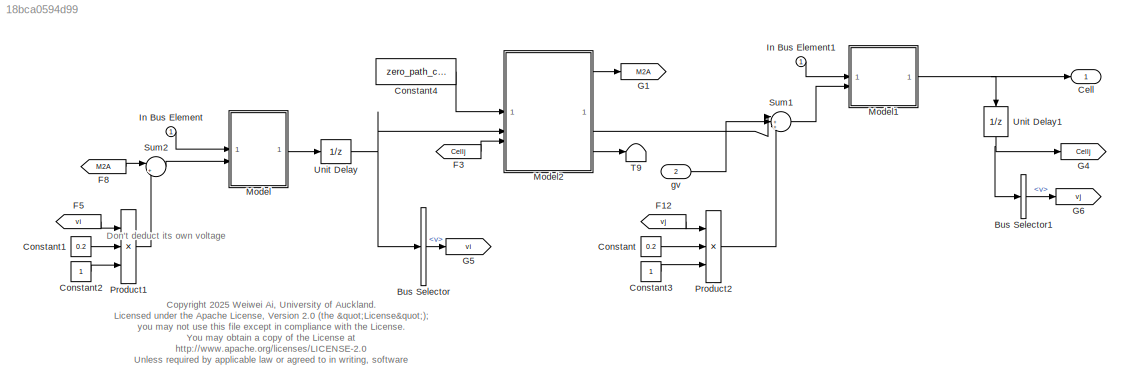
MODEL slx_18bca0594d99
KIND model
CONFIG AbsTol = auto
CONFIG EnableMultiTasking = off
CONFIG FixedStep = 0.5e-3
CONFIG MaxStep = auto
CONFIG MinStep = auto
CONFIG RelTol = 1e-3
CONFIG SampleTimeConstraint = Unconstrained
CONFIG SolverName = ode1
CONFIG StartTime = 0.0
CONFIG StopTime = 10.0
WORKSPACE source: mxarray member
WORKSPACE l: Simulink.Parameter (value not decoded)
WORKSPACE zero_path_cfg: object (value not decoded)
BLOCK [BusSelector] Bus Selector
  OutputSignals = v
BLOCK [BusSelector] Bus Selector1
  OutputSignals = v
BLOCK [Outport] Cell
  BusOutputAsStruct = on
  OutDataTypeStr = Bus: Cell
  SampleTime = 0
  SamplingMode = Sample based
  SignalType = real
BLOCK [Constant] Constant
  Value = 0.2
BLOCK [Constant] Constant1
  Value = 0.2
BLOCK [Constant] Constant2
BLOCK [Constant] Constant3
BLOCK [Constant] Constant4
  OutDataTypeStr = Bus: Config_Path
  SampleTime = -1
  Value = zero_path_cfg
  VectorParams1D = off
BLOCK [From] F12
  GotoTag = vj
BLOCK [From] F3
  GotoTag = Cellj
BLOCK [From] F5
  GotoTag = vi
BLOCK [From] F8
  GotoTag = M2A
BLOCK [Goto] G1
  GotoTag = M2A
BLOCK [Goto] G4
  GotoTag = Cellj
BLOCK [Goto] G5
  GotoTag = vi
BLOCK [Goto] G6
  GotoTag = vj
BLOCK [Inport] In Bus Element
BLOCK [Inport] In Bus Element1
BLOCK [ModelReference] Model
  ModelNameDialog = Node_N.slx
  ModelReferenceVersion = 1.106
BLOCK [ModelReference] Model1
  ModelNameDialog = Node_M.slx
  ModelReferenceVersion = 1.87
BLOCK [ModelReference] Model2
  ModelNameDialog = Path_model.slx
  ModelReferenceVersion = 1.87
  ParameterArgumentNames = l
  UsingDefaultArgumentValue = 0
BLOCK [Product] Product1
  Inputs = ***
BLOCK [Product] Product2
  Inputs = ***
BLOCK [Sum] Sum1
  Inputs = |+++
BLOCK [Sum] Sum2
  Inputs = |++
BLOCK [Terminator] T9
BLOCK [UnitDelay] Unit Delay
  HasFrameUpgradeWarning = on
  SampleTime = -1
BLOCK [UnitDelay] Unit Delay1
  HasFrameUpgradeWarning = on
  NameLocation = left
  SampleTime = -1
BLOCK [Inport] gv
  OutDataTypeStr = double
  Port = 2
  PortDimensions = 1
  SamplingMode = Sample based
  SignalType = real
ANNOTATION (root): <copyright redacted>
ANNOTATION (root): Don't deduct its own voltage
LINE Bus Selector1:1 -> G6:1
LINE Bus Selector:1 -> G5:1
LINE Constant1:1 -> Product1:2
LINE Constant2:1 -> Product1:3
LINE Constant3:1 -> Product2:3
LINE Constant4:1 -> Model2:1
LINE Constant:1 -> Product2:2
LINE F12:1 -> Product2:1
LINE F3:1 -> Model2:3
LINE F5:1 -> Product1:1
LINE F8:1 -> Sum2:1
LINE In Bus Element1:1 -> Model1:1
LINE In Bus Element:1 -> Model:1
NET Model1:1 -> Cell:1, Unit Delay1:1
LINE Model2:1 -> G1:1
LINE Model2:2 -> Sum1:1
LINE Model2:3 -> T9:1
LINE Model:1 -> Unit Delay:1
LINE Product1:1 -> Sum2:2
LINE Product2:1 -> Sum1:3
LINE Sum1:1 -> Model1:2
LINE Sum2:1 -> Model:2
NET Unit Delay1:1 -> Bus Selector1:1, G4:1
NET Unit Delay:1 -> Bus Selector:1, Model2:2
LINE gv:1 -> Sum1:2
note: NET lines group one-source signal fan-out (src -> all destinations, sorted); 1:1 wires keep LINE
